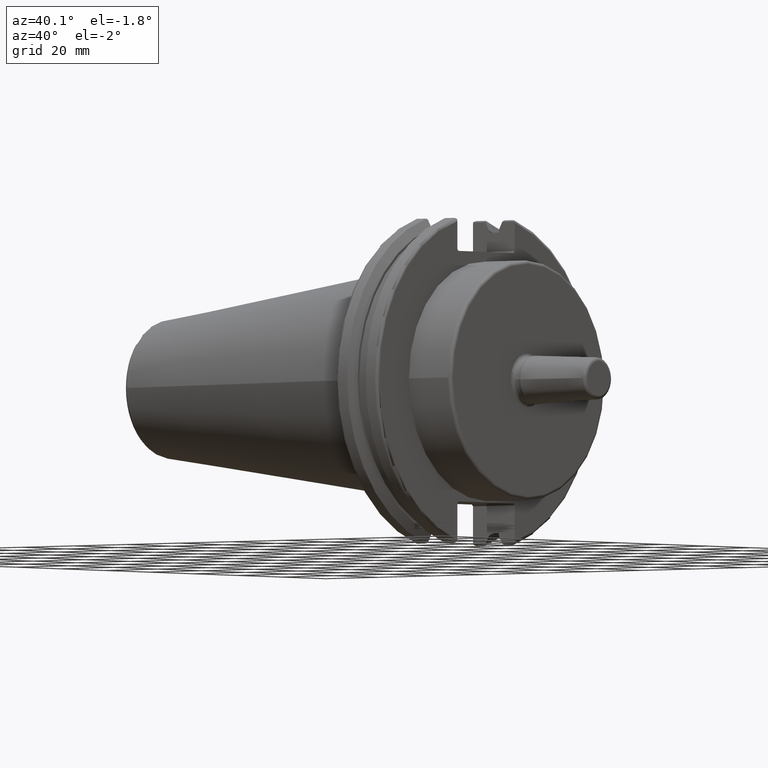
[diagram: clean part render]
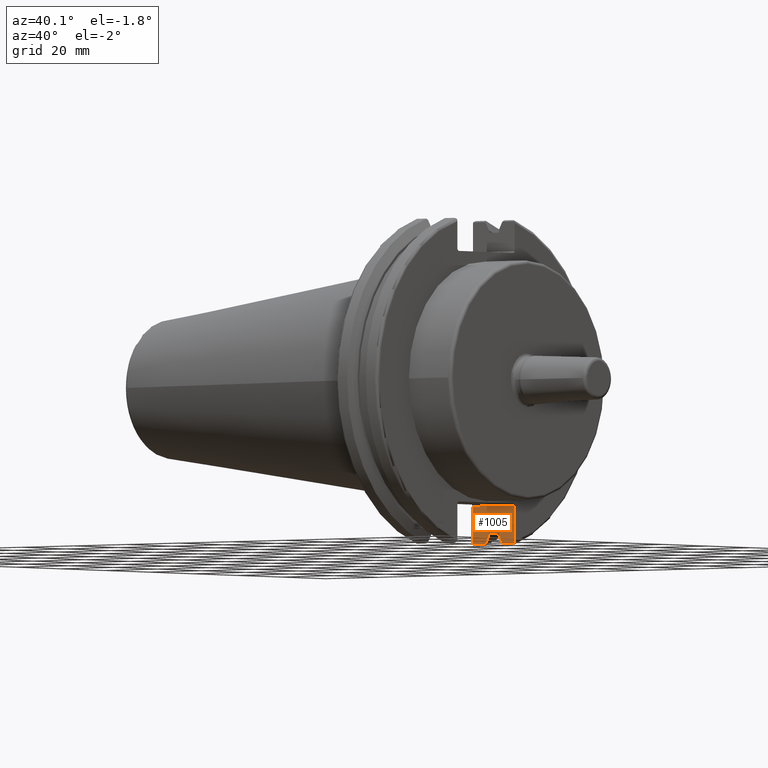
[diagram: same view with one face highlighted and labeled with its STEP entity id]
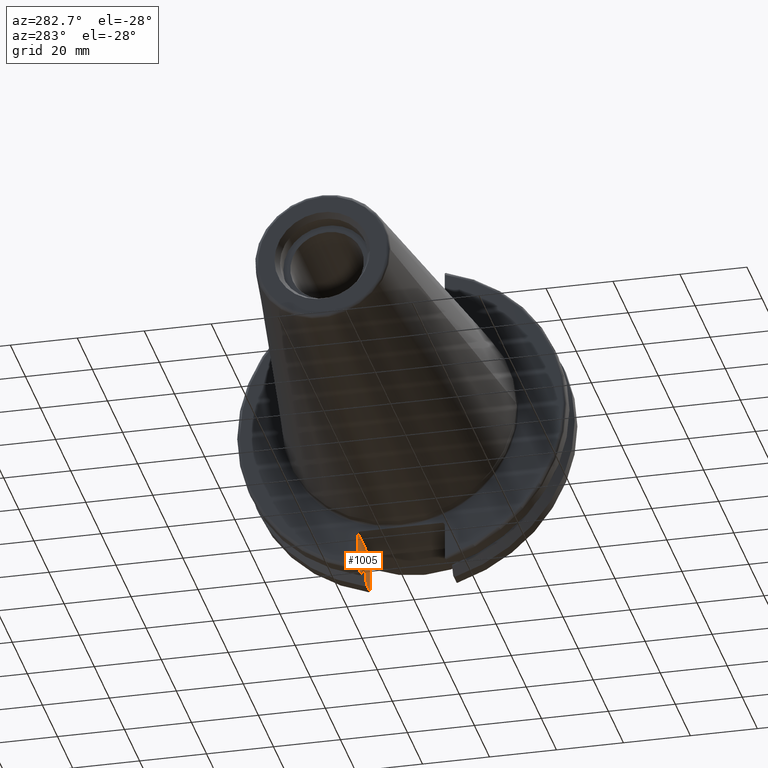
[diagram: same view with one face highlighted and labeled with its STEP entity id]
A machine part, auxiliary view. The second image highlights one B-rep face of the part: STEP entity #1005.
A second angle (auxiliary view) of the same face is appended — the face is thin or edge-on in the first view.
In plain terms, the highlighted planar face has unit normal (0, 1, 0).
Its self-contained STEP definition (entity closure, byte-faithful):
#16=(
BOUNDED_CURVE()
B_SPLINE_CURVE(2,(#1625,#1626,#1627),.UNSPECIFIED.,.F.,.F.)
B_SPLINE_CURVE_WITH_KNOTS((3,3),(0.,0.275823910675719),.UNSPECIFIED.)
CURVE()
GEOMETRIC_REPRESENTATION_ITEM()
RATIONAL_B_SPLINE_CURVE((1.,1.00038235576197,1.00012873637364))
REPRESENTATION_ITEM('')
);
#17=(
BOUNDED_CURVE()
B_SPLINE_CURVE(2,(#1634,#1635,#1636),.UNSPECIFIED.,.F.,.F.)
B_SPLINE_CURVE_WITH_KNOTS((3,3),(0.0558332664526605,0.331657177124507),
 .UNSPECIFIED.)
CURVE()
GEOMETRIC_REPRESENTATION_ITEM()
RATIONAL_B_SPLINE_CURVE((1.00012873637134,1.00038235575513,1.))
REPRESENTATION_ITEM('')
);
#32=B_SPLINE_CURVE_WITH_KNOTS('',3,(#1578,#1579,#1580,#1581,#1582,#1583),
 .UNSPECIFIED.,.F.,.F.,(4,2,4),(0.452859340315922,0.491741138916218,0.506051994111223),
 .UNSPECIFIED.);
#35=B_SPLINE_CURVE_WITH_KNOTS('',3,(#1616,#1617,#1618,#1619,#1620,#1621),
 .UNSPECIFIED.,.F.,.F.,(4,2,4),(0.0976892167532858,0.112000071948292,0.150881870548587),
 .UNSPECIFIED.);
#68=PLANE('',#1114);
#117=FACE_OUTER_BOUND('',#179,.T.);
#179=EDGE_LOOP('',(#748,#749,#750,#751,#752,#753,#754,#755,#756,#757,#758,
#759));
#238=LINE('',#1554,#307);
#244=LINE('',#1605,#313);
#246=LINE('',#1613,#315);
#247=LINE('',#1614,#316);
#248=LINE('',#1623,#317);
#249=LINE('',#1629,#318);
#250=LINE('',#1631,#319);
#251=LINE('',#1633,#320);
#307=VECTOR('',#1269,10.);
#313=VECTOR('',#1287,10.);
#315=VECTOR('',#1291,10.);
#316=VECTOR('',#1292,10.);
#317=VECTOR('',#1293,10.);
#318=VECTOR('',#1294,10.);
#319=VECTOR('',#1295,10.);
#320=VECTOR('',#1296,10.);
#442=VERTEX_POINT('',#1551);
#443=VERTEX_POINT('',#1553);
#450=VERTEX_POINT('',#1575);
#451=VERTEX_POINT('',#1577);
#454=VERTEX_POINT('',#1604);
#456=VERTEX_POINT('',#1612);
#457=VERTEX_POINT('',#1615);
#458=VERTEX_POINT('',#1622);
#459=VERTEX_POINT('',#1624);
#460=VERTEX_POINT('',#1628);
#461=VERTEX_POINT('',#1630);
#462=VERTEX_POINT('',#1632);
#552=EDGE_CURVE('',#442,#443,#238,.T.);
#561=EDGE_CURVE('',#450,#451,#32,.T.);
#565=EDGE_CURVE('',#451,#454,#244,.T.);
#568=EDGE_CURVE('',#456,#450,#246,.T.);
#569=EDGE_CURVE('',#443,#456,#247,.T.);
#570=EDGE_CURVE('',#457,#442,#35,.T.);
#571=EDGE_CURVE('',#458,#457,#248,.T.);
#572=EDGE_CURVE('',#459,#458,#16,.T.);
#573=EDGE_CURVE('',#460,#459,#249,.T.);
#574=EDGE_CURVE('',#461,#460,#250,.T.);
#575=EDGE_CURVE('',#462,#461,#251,.T.);
#576=EDGE_CURVE('',#454,#462,#17,.T.);
#748=ORIENTED_EDGE('',*,*,#561,.F.);
#749=ORIENTED_EDGE('',*,*,#568,.F.);
#750=ORIENTED_EDGE('',*,*,#569,.F.);
#751=ORIENTED_EDGE('',*,*,#552,.F.);
#752=ORIENTED_EDGE('',*,*,#570,.F.);
#753=ORIENTED_EDGE('',*,*,#571,.F.);
#754=ORIENTED_EDGE('',*,*,#572,.F.);
#755=ORIENTED_EDGE('',*,*,#573,.F.);
#756=ORIENTED_EDGE('',*,*,#574,.F.);
#757=ORIENTED_EDGE('',*,*,#575,.F.);
#758=ORIENTED_EDGE('',*,*,#576,.F.);
#759=ORIENTED_EDGE('',*,*,#565,.F.);
#1005=ADVANCED_FACE('',(#117),#68,.F.);
#1114=AXIS2_PLACEMENT_3D('',#1611,#1289,#1290);
#1269=DIRECTION('',(0.,0.,1.));
#1287=DIRECTION('',(-1.,2.63163976207444E-16,0.));
#1289=DIRECTION('center_axis',(2.63163976207444E-16,1.,0.));
#1290=DIRECTION('ref_axis',(1.,-2.63163976207444E-16,0.));
#1291=DIRECTION('',(0.,0.,-1.));
#1292=DIRECTION('',(1.,-2.63163976207444E-16,0.));
#1293=DIRECTION('',(-1.,2.63163976207444E-16,0.));
#1294=DIRECTION('',(0.,0.,-1.));
#1295=DIRECTION('',(-1.,0.,0.));
#1296=DIRECTION('',(0.,0.,1.));
#1551=CARTESIAN_POINT('',(3.175,12.95,-46.4407434937254));
#1553=CARTESIAN_POINT('',(3.175,12.95,-35.806));
#1554=CARTESIAN_POINT('',(3.175,12.95,-17.653));
#1575=CARTESIAN_POINT('',(19.05,12.95,-46.4407434937254));
#1577=CARTESIAN_POINT('',(18.9055020570566,12.95,-46.9780755322918));
#1578=CARTESIAN_POINT('Ctrl Pts',(19.05,12.95,-46.4407434937254));
#1579=CARTESIAN_POINT('Ctrl Pts',(19.05,12.95,-46.5703494890597));
#1580=CARTESIAN_POINT('Ctrl Pts',(19.0204646992875,12.95,-46.7230464903732));
#1581=CARTESIAN_POINT('Ctrl Pts',(18.9538432708766,12.95,-46.887363294568));
#1582=CARTESIAN_POINT('Ctrl Pts',(18.9315844351616,12.95,-46.9333752207329));
#1583=CARTESIAN_POINT('Ctrl Pts',(18.9055020570566,12.95,-46.9780755322918));
#1604=CARTESIAN_POINT('',(14.3750103943757,12.95,-46.9780755322918));
#1605=CARTESIAN_POINT('',(16.8517045170244,12.95,-46.9780755322918));
#1611=CARTESIAN_POINT('Origin',(3.17499999999999,12.95,-35.306));
#1612=CARTESIAN_POINT('',(19.05,12.95,-35.806));
#1613=CARTESIAN_POINT('',(19.05,12.95,-17.653));
#1614=CARTESIAN_POINT('',(10.63125,12.95,-35.806));
#1615=CARTESIAN_POINT('',(3.31949794294344,12.95,-46.9780755322918));
#1616=CARTESIAN_POINT('Ctrl Pts',(3.31949794294344,12.95,-46.9780755322918));
#1617=CARTESIAN_POINT('Ctrl Pts',(3.29341556483839,12.95,-46.9333752207329));
#1618=CARTESIAN_POINT('Ctrl Pts',(3.27115672912336,12.95,-46.887363294568));
#1619=CARTESIAN_POINT('Ctrl Pts',(3.20453530071253,12.95,-46.7230464903732));
#1620=CARTESIAN_POINT('Ctrl Pts',(3.175,12.95,-46.5703494890597));
#1621=CARTESIAN_POINT('Ctrl Pts',(3.175,12.95,-46.4407434937254));
#1622=CARTESIAN_POINT('',(7.87958960562425,12.95,-46.9780755322918));
#1623=CARTESIAN_POINT('',(5.38809548297564,12.95,-46.9780755322918));
#1624=CARTESIAN_POINT('',(9.2123,12.95,-44.5791147973604));
#1625=CARTESIAN_POINT('Ctrl Pts',(9.2123,12.95,-44.5791147973604));
#1626=CARTESIAN_POINT('Ctrl Pts',(8.56340449055463,12.95,-45.7494966802219));
#1627=CARTESIAN_POINT('Ctrl Pts',(7.87958960562425,12.95,-46.9780755322918));
#1628=CARTESIAN_POINT('',(9.2123,12.95,-43.7678716897452));
#1629=CARTESIAN_POINT('',(9.2123,12.95,-17.653));
#1630=CARTESIAN_POINT('',(13.0423,12.95,-43.7678716897452));
#1631=CARTESIAN_POINT('',(11.1273,12.95,-43.7678716897452));
#1632=CARTESIAN_POINT('',(13.0423,12.95,-44.5791147973605));
#1633=CARTESIAN_POINT('',(13.0423,12.95,-17.653));
#1634=CARTESIAN_POINT('Ctrl Pts',(14.3750103943757,12.95,-46.9780755322918));
#1635=CARTESIAN_POINT('Ctrl Pts',(13.6911955094886,12.95,-45.7494966802996));
#1636=CARTESIAN_POINT('Ctrl Pts',(13.0423,12.95,-44.5791147973604));